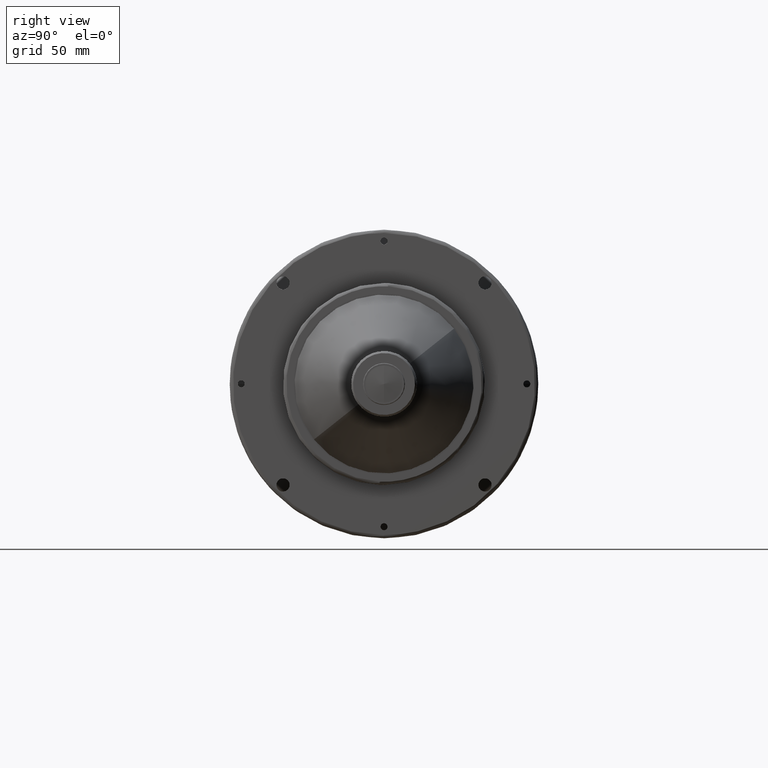
[diagram: clean part render]
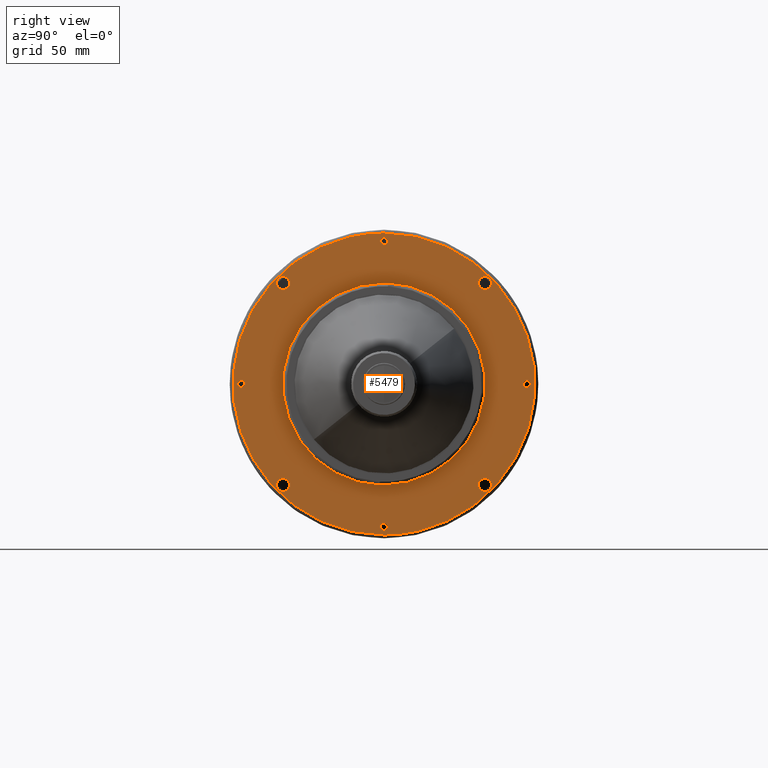
[diagram: same view with one face highlighted and labeled with its STEP entity id]
A machine part, right view. The second image highlights one B-rep face of the part: STEP entity #5479.
In plain terms, the highlighted planar face has unit normal (-1, 0, 0).
Its self-contained STEP definition (entity closure, byte-faithful):
#1 = CARTESIAN_POINT ( 'NONE',  ( 149.0000000000000000, -61.51828996299999400, 57.51828996299999400 ) ) ;
#6 =( BOUNDED_CURVE ( )  B_SPLINE_CURVE ( 3, ( #1795, #1387, #5676, #3349 ),
 .UNSPECIFIED., .F., .T. ) 
 B_SPLINE_CURVE_WITH_KNOTS ( ( 4, 4 ),
 ( 0.0000000000000000000, 1.000000000000000000 ),
 .UNSPECIFIED. ) 
 CURVE ( )  GEOMETRIC_REPRESENTATION_ITEM ( )  RATIONAL_B_SPLINE_CURVE ( ( 0.9565783021300905400, 0.3188594340433632000, 0.3188594340433632000, 0.9565783021300905400 ) ) 
 REPRESENTATION_ITEM ( '' )  );
#44 = VERTEX_POINT ( 'NONE', #3890 ) ;
#55 = EDGE_CURVE ( 'NONE', #1120, #209, #3913, .T. ) ;
#78 =( BOUNDED_CURVE ( )  B_SPLINE_CURVE ( 3, ( #2921, #1992, #3071, #2132 ),
 .UNSPECIFIED., .F., .T. ) 
 B_SPLINE_CURVE_WITH_KNOTS ( ( 4, 4 ),
 ( 0.0000000000000000000, 1.000000000000000000 ),
 .UNSPECIFIED. ) 
 CURVE ( )  GEOMETRIC_REPRESENTATION_ITEM ( )  RATIONAL_B_SPLINE_CURVE ( ( 0.9565783021300918700, 0.3188594340433635900, 0.3188594340433635900, 0.9565783021300918700 ) ) 
 REPRESENTATION_ITEM ( '' )  );
#168 = AXIS2_PLACEMENT_3D ( 'NONE', #4281, #5722, #5763 ) ;
#202 = ORIENTED_EDGE ( 'NONE', *, *, #1379, .F. ) ;
#209 = VERTEX_POINT ( 'NONE', #6091 ) ;
#296 = CARTESIAN_POINT ( 'NONE',  ( 149.0000000000000000, 61.51828996299999400, -61.51828996299999400 ) ) ;
#348 = EDGE_CURVE ( 'NONE', #2433, #4263, #401, .T. ) ;
#401 = CIRCLE ( 'NONE', #3069, 2.099999999999990800 ) ;
#403 = EDGE_LOOP ( 'NONE', ( #4005, #5545 ) ) ;
#404 = CARTESIAN_POINT ( 'NONE',  ( 149.0000000000000000, 87.00000000000001400, -2.100000000000000100 ) ) ;
#406 = CIRCLE ( 'NONE', #4880, 4.000000000000024000 ) ;
#486 = AXIS2_PLACEMENT_3D ( 'NONE', #2626, #1175, #4097 ) ;
#537 = CARTESIAN_POINT ( 'NONE',  ( 149.0000000000000000, -87.00000000000001400, 0.0000000000000000000 ) ) ;
#557 = FACE_BOUND ( 'NONE', #642, .T. ) ;
#561 = PLANE ( 'NONE',  #2073 ) ;
#567 = VERTEX_POINT ( 'NONE', #4090 ) ;
#596 = CIRCLE ( 'NONE', #2962, 2.099999999999990800 ) ;
#603 = VERTEX_POINT ( 'NONE', #1169 ) ;
#620 = EDGE_CURVE ( 'NONE', #3644, #5745, #2024, .T. ) ;
#624 = FACE_BOUND ( 'NONE', #1581, .T. ) ;
#642 = EDGE_LOOP ( 'NONE', ( #2634, #2114 ) ) ;
#645 = VERTEX_POINT ( 'NONE', #5021 ) ;
#692 = CARTESIAN_POINT ( 'NONE',  ( 149.0000000000000000, 87.00000000000001400, 2.100000000000000100 ) ) ;
#724 = DIRECTION ( 'NONE',  ( 1.000000000000000000, 0.0000000000000000000, 0.0000000000000000000 ) ) ;
#734 = EDGE_CURVE ( 'NONE', #6127, #2654, #5137, .T. ) ;
#749 = EDGE_CURVE ( 'NONE', #209, #1120, #5807, .T. ) ;
#819 = CARTESIAN_POINT ( 'NONE',  ( 149.0000000000000000, 61.51828996299999400, 61.51828996299998700 ) ) ;
#820 = VERTEX_POINT ( 'NONE', #3298 ) ;
#870 = AXIS2_PLACEMENT_3D ( 'NONE', #537, #3886, #4364 ) ;
#882 = DIRECTION ( 'NONE',  ( 1.000000000000000000, 0.0000000000000000000, 0.0000000000000000000 ) ) ;
#923 = FACE_BOUND ( 'NONE', #1813, .T. ) ;
#986 = VERTEX_POINT ( 'NONE', #2958 ) ;
#1042 = EDGE_CURVE ( 'NONE', #1319, #2961, #3772, .T. ) ;
#1066 = DIRECTION ( 'NONE',  ( 1.000000000000000000, 0.0000000000000000000, 0.0000000000000000000 ) ) ;
#1079 = ORIENTED_EDGE ( 'NONE', *, *, #6078, .F. ) ;
#1106 = DIRECTION ( 'NONE',  ( 1.000000000000000000, -0.0000000000000000000, 0.0000000000000000000 ) ) ;
#1120 = VERTEX_POINT ( 'NONE', #4470 ) ;
#1123 = AXIS2_PLACEMENT_3D ( 'NONE', #1980, #4858, #3930 ) ;
#1169 = CARTESIAN_POINT ( 'NONE',  ( 149.0000000000000000, 0.0000000000000000000, 61.50000000000000000 ) ) ;
#1175 = DIRECTION ( 'NONE',  ( 1.000000000000000000, -0.0000000000000000000, -0.0000000000000000000 ) ) ;
#1199 = CARTESIAN_POINT ( 'NONE',  ( 149.0000000000000000, -61.51828996299999400, -61.51828996299999400 ) ) ;
#1235 = EDGE_CURVE ( 'NONE', #603, #3332, #2237, .T. ) ;
#1242 = CARTESIAN_POINT ( 'NONE',  ( 149.0000000000000000, 61.51828996299999400, 65.51828996299998700 ) ) ;
#1249 = DIRECTION ( 'NONE',  ( 0.0000000000000000000, 0.0000000000000000000, -1.000000000000000000 ) ) ;
#1298 = DIRECTION ( 'NONE',  ( 1.000000000000000000, -0.0000000000000000000, -0.0000000000000000000 ) ) ;
#1319 = VERTEX_POINT ( 'NONE', #404 ) ;
#1357 = ORIENTED_EDGE ( 'NONE', *, *, #348, .F. ) ;
#1379 = EDGE_CURVE ( 'NONE', #4093, #44, #78, .T. ) ;
#1387 = CARTESIAN_POINT ( 'NONE',  ( 149.0000000003185200, 184.0000000018774500, 92.00000000129860200 ) ) ;
#1409 = CIRCLE ( 'NONE', #168, 3.999999999999996400 ) ;
#1446 = CIRCLE ( 'NONE', #3619, 2.100000000000004500 ) ;
#1560 = EDGE_CURVE ( 'NONE', #44, #4093, #6, .T. ) ;
#1581 = EDGE_LOOP ( 'NONE', ( #2167, #3506 ) ) ;
#1699 = DIRECTION ( 'NONE',  ( 1.000000000000000000, 0.0000000000000000000, 0.0000000000000000000 ) ) ;
#1726 = DIRECTION ( 'NONE',  ( 1.000000000000000000, -0.0000000000000000000, -0.0000000000000000000 ) ) ;
#1730 = DIRECTION ( 'NONE',  ( 0.0000000000000000000, 0.0000000000000000000, -1.000000000000000000 ) ) ;
#1763 = CARTESIAN_POINT ( 'NONE',  ( 149.0000000000000000, -87.00000000000001400, 0.0000000000000000000 ) ) ;
#1795 = CARTESIAN_POINT ( 'NONE',  ( 149.0000000001910800, 0.0000000000000000000, 91.99999998249009500 ) ) ;
#1811 = FACE_OUTER_BOUND ( 'NONE', #4555, .T. ) ;
#1813 = EDGE_LOOP ( 'NONE', ( #4176, #4328 ) ) ;
#1961 = FACE_BOUND ( 'NONE', #3031, .T. ) ;
#1967 = EDGE_CURVE ( 'NONE', #5263, #986, #2456, .T. ) ;
#1980 = CARTESIAN_POINT ( 'NONE',  ( 149.0000000000000000, 61.51828996299999400, -61.51828996299999400 ) ) ;
#1992 = CARTESIAN_POINT ( 'NONE',  ( 149.0000000003185200, -184.0000000018774800, -92.00000000129861600 ) ) ;
#2024 = CIRCLE ( 'NONE', #4013, 3.999999999999996400 ) ;
#2031 = FACE_BOUND ( 'NONE', #2471, .T. ) ;
#2057 = AXIS2_PLACEMENT_3D ( 'NONE', #5613, #1298, #4216 ) ;
#2067 = DIRECTION ( 'NONE',  ( 0.0000000000000000000, 0.0000000000000000000, -1.000000000000000000 ) ) ;
#2073 = AXIS2_PLACEMENT_3D ( 'NONE', #3908, #4885, #2505 ) ;
#2114 = ORIENTED_EDGE ( 'NONE', *, *, #5739, .F. ) ;
#2132 = CARTESIAN_POINT ( 'NONE',  ( 149.0000000001910800, 0.0000000000000000000, 91.99999998249009500 ) ) ;
#2150 = DIRECTION ( 'NONE',  ( 1.000000000000000000, 0.0000000000000000000, 0.0000000000000000000 ) ) ;
#2167 = ORIENTED_EDGE ( 'NONE', *, *, #2168, .F. ) ;
#2168 = EDGE_CURVE ( 'NONE', #820, #645, #4814, .T. ) ;
#2237 = CIRCLE ( 'NONE', #2057, 61.50000000000000000 ) ;
#2331 = FACE_BOUND ( 'NONE', #3650, .T. ) ;
#2430 = CARTESIAN_POINT ( 'NONE',  ( 149.0000000000000000, 87.00000000000001400, 0.0000000000000000000 ) ) ;
#2433 = VERTEX_POINT ( 'NONE', #4619 ) ;
#2452 = EDGE_CURVE ( 'NONE', #3332, #603, #4425, .T. ) ;
#2456 = CIRCLE ( 'NONE', #870, 2.100000000000000100 ) ;
#2471 = EDGE_LOOP ( 'NONE', ( #1357, #4909 ) ) ;
#2505 = DIRECTION ( 'NONE',  ( 0.0000000000000000000, 0.0000000000000000000, 1.000000000000000000 ) ) ;
#2558 = DIRECTION ( 'NONE',  ( 1.000000000000000000, 0.0000000000000000000, 0.0000000000000000000 ) ) ;
#2563 = CIRCLE ( 'NONE', #5088, 2.100000000000000100 ) ;
#2605 = EDGE_CURVE ( 'NONE', #567, #4232, #1409, .T. ) ;
#2626 = CARTESIAN_POINT ( 'NONE',  ( 149.0000000000000000, 0.0000000000000000000, 0.0000000000000000000 ) ) ;
#2634 = ORIENTED_EDGE ( 'NONE', *, *, #620, .F. ) ;
#2643 = CARTESIAN_POINT ( 'NONE',  ( 149.0000000000000000, -61.51828996299999400, -61.51828996299999400 ) ) ;
#2654 = VERTEX_POINT ( 'NONE', #3343 ) ;
#2670 = DIRECTION ( 'NONE',  ( 0.0000000000000000000, 0.0000000000000000000, -1.000000000000000000 ) ) ;
#2900 = DIRECTION ( 'NONE',  ( 0.0000000000000000000, 0.0000000000000000000, -1.000000000000000000 ) ) ;
#2909 = AXIS2_PLACEMENT_3D ( 'NONE', #296, #1699, #1249 ) ;
#2921 = CARTESIAN_POINT ( 'NONE',  ( 149.0000000001910500, 0.0000000000000000000, -91.99999998249011000 ) ) ;
#2955 = AXIS2_PLACEMENT_3D ( 'NONE', #4326, #4365, #5808 ) ;
#2958 = CARTESIAN_POINT ( 'NONE',  ( 149.0000000000000000, -87.00000000000001400, 2.100000000000000100 ) ) ;
#2961 = VERTEX_POINT ( 'NONE', #692 ) ;
#2962 = AXIS2_PLACEMENT_3D ( 'NONE', #4424, #2558, #5947 ) ;
#3031 = EDGE_LOOP ( 'NONE', ( #5521, #5962 ) ) ;
#3069 = AXIS2_PLACEMENT_3D ( 'NONE', #5291, #5742, #2900 ) ;
#3071 = CARTESIAN_POINT ( 'NONE',  ( 149.0000000003185200, -184.0000000018774800, 92.00000000129861600 ) ) ;
#3185 = EDGE_CURVE ( 'NONE', #4263, #2433, #596, .T. ) ;
#3202 = DIRECTION ( 'NONE',  ( 1.000000000000000000, 0.0000000000000000000, 0.0000000000000000000 ) ) ;
#3245 = FACE_BOUND ( 'NONE', #403, .T. ) ;
#3298 = CARTESIAN_POINT ( 'NONE',  ( 149.0000000000000000, 0.0000000000000000000, 84.90000000000000600 ) ) ;
#3304 = CARTESIAN_POINT ( 'NONE',  ( 149.0000000000000000, 2.571758278209430100E-016, -84.90000000000002000 ) ) ;
#3310 = DIRECTION ( 'NONE',  ( 0.0000000000000000000, 0.0000000000000000000, -1.000000000000000000 ) ) ;
#3324 = FACE_BOUND ( 'NONE', #4206, .T. ) ;
#3332 = VERTEX_POINT ( 'NONE', #5091 ) ;
#3343 = CARTESIAN_POINT ( 'NONE',  ( 149.0000000000000000, -61.51828996299999400, -65.51828996300001500 ) ) ;
#3349 = CARTESIAN_POINT ( 'NONE',  ( 149.0000000001910500, 0.0000000000000000000, -91.99999998249011000 ) ) ;
#3506 = ORIENTED_EDGE ( 'NONE', *, *, #4563, .F. ) ;
#3511 = ORIENTED_EDGE ( 'NONE', *, *, #5651, .F. ) ;
#3619 = AXIS2_PLACEMENT_3D ( 'NONE', #4482, #4086, #2067 ) ;
#3644 = VERTEX_POINT ( 'NONE', #4003 ) ;
#3650 = EDGE_LOOP ( 'NONE', ( #6056, #4157 ) ) ;
#3772 = CIRCLE ( 'NONE', #2955, 2.100000000000000100 ) ;
#3773 = AXIS2_PLACEMENT_3D ( 'NONE', #6109, #3202, #1730 ) ;
#3886 = DIRECTION ( 'NONE',  ( 1.000000000000000000, 0.0000000000000000000, 0.0000000000000000000 ) ) ;
#3890 = CARTESIAN_POINT ( 'NONE',  ( 149.0000000001910800, 0.0000000000000000000, 91.99999998249009500 ) ) ;
#3908 = CARTESIAN_POINT ( 'NONE',  ( 149.0000000000000000, -93.10399999999999900, -93.10399999999999900 ) ) ;
#3913 = CIRCLE ( 'NONE', #1123, 4.000000000000024000 ) ;
#3930 = DIRECTION ( 'NONE',  ( 0.0000000000000000000, 0.0000000000000000000, -1.000000000000000000 ) ) ;
#3989 = EDGE_CURVE ( 'NONE', #4232, #567, #5707, .T. ) ;
#4003 = CARTESIAN_POINT ( 'NONE',  ( 149.0000000000000000, 61.51828996299999400, 57.51828996299999400 ) ) ;
#4005 = ORIENTED_EDGE ( 'NONE', *, *, #1042, .F. ) ;
#4013 = AXIS2_PLACEMENT_3D ( 'NONE', #4025, #1106, #5965 ) ;
#4025 = CARTESIAN_POINT ( 'NONE',  ( 149.0000000000000000, 61.51828996299999400, 61.51828996299998700 ) ) ;
#4086 = DIRECTION ( 'NONE',  ( 1.000000000000000000, 0.0000000000000000000, 0.0000000000000000000 ) ) ;
#4090 = CARTESIAN_POINT ( 'NONE',  ( 149.0000000000000000, -61.51828996299999400, 65.51828996299998700 ) ) ;
#4093 = VERTEX_POINT ( 'NONE', #4193 ) ;
#4097 = DIRECTION ( 'NONE',  ( 0.0000000000000000000, 0.0000000000000000000, 1.000000000000000000 ) ) ;
#4157 = ORIENTED_EDGE ( 'NONE', *, *, #2605, .F. ) ;
#4170 = DIRECTION ( 'NONE',  ( 0.0000000000000000000, 0.0000000000000000000, -1.000000000000000000 ) ) ;
#4176 = ORIENTED_EDGE ( 'NONE', *, *, #1235, .F. ) ;
#4193 = CARTESIAN_POINT ( 'NONE',  ( 149.0000000001910500, 0.0000000000000000000, -91.99999998249011000 ) ) ;
#4206 = EDGE_LOOP ( 'NONE', ( #4350, #1079 ) ) ;
#4216 = DIRECTION ( 'NONE',  ( 0.0000000000000000000, 0.0000000000000000000, 1.000000000000000000 ) ) ;
#4230 = FACE_BOUND ( 'NONE', #5731, .T. ) ;
#4232 = VERTEX_POINT ( 'NONE', #1 ) ;
#4263 = VERTEX_POINT ( 'NONE', #3304 ) ;
#4281 = CARTESIAN_POINT ( 'NONE',  ( 149.0000000000000000, -61.51828996299999400, 61.51828996299998700 ) ) ;
#4326 = CARTESIAN_POINT ( 'NONE',  ( 149.0000000000000000, 87.00000000000001400, 0.0000000000000000000 ) ) ;
#4328 = ORIENTED_EDGE ( 'NONE', *, *, #2452, .F. ) ;
#4350 = ORIENTED_EDGE ( 'NONE', *, *, #1967, .F. ) ;
#4364 = DIRECTION ( 'NONE',  ( 0.0000000000000000000, 0.0000000000000000000, -1.000000000000000000 ) ) ;
#4365 = DIRECTION ( 'NONE',  ( 1.000000000000000000, 0.0000000000000000000, 0.0000000000000000000 ) ) ;
#4424 = CARTESIAN_POINT ( 'NONE',  ( 149.0000000000000000, 0.0000000000000000000, -87.00000000000001400 ) ) ;
#4425 = CIRCLE ( 'NONE', #486, 61.50000000000000000 ) ;
#4434 = EDGE_CURVE ( 'NONE', #2961, #1319, #5783, .T. ) ;
#4470 = CARTESIAN_POINT ( 'NONE',  ( 149.0000000000000000, 61.51828996299999400, -65.51828996300001500 ) ) ;
#4482 = CARTESIAN_POINT ( 'NONE',  ( 149.0000000000000000, 0.0000000000000000000, 87.00000000000001400 ) ) ;
#4555 = EDGE_LOOP ( 'NONE', ( #5920, #202 ) ) ;
#4563 = EDGE_CURVE ( 'NONE', #645, #820, #1446, .T. ) ;
#4614 = CARTESIAN_POINT ( 'NONE',  ( 149.0000000000000000, -61.51828996299999400, 61.51828996299998700 ) ) ;
#4619 = CARTESIAN_POINT ( 'NONE',  ( 149.0000000000000000, 0.0000000000000000000, -89.09999999999999400 ) ) ;
#4665 = AXIS2_PLACEMENT_3D ( 'NONE', #4614, #1726, #5040 ) ;
#4766 = CIRCLE ( 'NONE', #5001, 3.999999999999996400 ) ;
#4814 = CIRCLE ( 'NONE', #3773, 2.100000000000004500 ) ;
#4858 = DIRECTION ( 'NONE',  ( 1.000000000000000000, 0.0000000000000000000, 0.0000000000000000000 ) ) ;
#4880 = AXIS2_PLACEMENT_3D ( 'NONE', #1199, #724, #2670 ) ;
#4885 = DIRECTION ( 'NONE',  ( -1.000000000000000000, 0.0000000000000000000, 0.0000000000000000000 ) ) ;
#4909 = ORIENTED_EDGE ( 'NONE', *, *, #3185, .F. ) ;
#5001 = AXIS2_PLACEMENT_3D ( 'NONE', #819, #5688, #6137 ) ;
#5021 = CARTESIAN_POINT ( 'NONE',  ( 149.0000000000000000, 2.571758278209447400E-016, 89.10000000000000900 ) ) ;
#5040 = DIRECTION ( 'NONE',  ( 0.0000000000000000000, 0.0000000000000000000, -1.000000000000000000 ) ) ;
#5088 = AXIS2_PLACEMENT_3D ( 'NONE', #1763, #882, #3310 ) ;
#5091 = CARTESIAN_POINT ( 'NONE',  ( 149.0000000000000000, 7.531577814756222700E-015, -61.50000000000000000 ) ) ;
#5137 = CIRCLE ( 'NONE', #5546, 4.000000000000024000 ) ;
#5263 = VERTEX_POINT ( 'NONE', #6144 ) ;
#5291 = CARTESIAN_POINT ( 'NONE',  ( 149.0000000000000000, 0.0000000000000000000, -87.00000000000001400 ) ) ;
#5364 = AXIS2_PLACEMENT_3D ( 'NONE', #2430, #1066, #5856 ) ;
#5479 = ADVANCED_FACE ( 'NONE', ( #923, #2031, #3324, #624, #3245, #1961, #4230, #2331, #557, #1811 ), #561, .F. ) ;
#5521 = ORIENTED_EDGE ( 'NONE', *, *, #55, .F. ) ;
#5545 = ORIENTED_EDGE ( 'NONE', *, *, #4434, .F. ) ;
#5546 = AXIS2_PLACEMENT_3D ( 'NONE', #2643, #2150, #4170 ) ;
#5613 = CARTESIAN_POINT ( 'NONE',  ( 149.0000000000000000, 0.0000000000000000000, 0.0000000000000000000 ) ) ;
#5651 = EDGE_CURVE ( 'NONE', #2654, #6127, #406, .T. ) ;
#5658 = CARTESIAN_POINT ( 'NONE',  ( 149.0000000000000000, -61.51828996299999400, -57.51828996299997200 ) ) ;
#5676 = CARTESIAN_POINT ( 'NONE',  ( 149.0000000003185200, 184.0000000018774500, -92.00000000129860200 ) ) ;
#5688 = DIRECTION ( 'NONE',  ( 1.000000000000000000, -0.0000000000000000000, 0.0000000000000000000 ) ) ;
#5707 = CIRCLE ( 'NONE', #4665, 3.999999999999996400 ) ;
#5722 = DIRECTION ( 'NONE',  ( 1.000000000000000000, -0.0000000000000000000, -0.0000000000000000000 ) ) ;
#5731 = EDGE_LOOP ( 'NONE', ( #3511, #5836 ) ) ;
#5739 = EDGE_CURVE ( 'NONE', #5745, #3644, #4766, .T. ) ;
#5742 = DIRECTION ( 'NONE',  ( 1.000000000000000000, 0.0000000000000000000, 0.0000000000000000000 ) ) ;
#5745 = VERTEX_POINT ( 'NONE', #1242 ) ;
#5763 = DIRECTION ( 'NONE',  ( 0.0000000000000000000, 0.0000000000000000000, -1.000000000000000000 ) ) ;
#5783 = CIRCLE ( 'NONE', #5364, 2.100000000000000100 ) ;
#5807 = CIRCLE ( 'NONE', #2909, 4.000000000000024000 ) ;
#5808 = DIRECTION ( 'NONE',  ( 0.0000000000000000000, 0.0000000000000000000, -1.000000000000000000 ) ) ;
#5836 = ORIENTED_EDGE ( 'NONE', *, *, #734, .F. ) ;
#5856 = DIRECTION ( 'NONE',  ( 0.0000000000000000000, 0.0000000000000000000, -1.000000000000000000 ) ) ;
#5920 = ORIENTED_EDGE ( 'NONE', *, *, #1560, .F. ) ;
#5947 = DIRECTION ( 'NONE',  ( 0.0000000000000000000, 0.0000000000000000000, -1.000000000000000000 ) ) ;
#5962 = ORIENTED_EDGE ( 'NONE', *, *, #749, .F. ) ;
#5965 = DIRECTION ( 'NONE',  ( 0.0000000000000000000, 0.0000000000000000000, -1.000000000000000000 ) ) ;
#6056 = ORIENTED_EDGE ( 'NONE', *, *, #3989, .F. ) ;
#6078 = EDGE_CURVE ( 'NONE', #986, #5263, #2563, .T. ) ;
#6091 = CARTESIAN_POINT ( 'NONE',  ( 149.0000000000000000, 61.51828996299999400, -57.51828996299997200 ) ) ;
#6109 = CARTESIAN_POINT ( 'NONE',  ( 149.0000000000000000, 0.0000000000000000000, 87.00000000000001400 ) ) ;
#6127 = VERTEX_POINT ( 'NONE', #5658 ) ;
#6137 = DIRECTION ( 'NONE',  ( 0.0000000000000000000, 0.0000000000000000000, -1.000000000000000000 ) ) ;
#6144 = CARTESIAN_POINT ( 'NONE',  ( 149.0000000000000000, -87.00000000000001400, -2.100000000000000100 ) ) ;